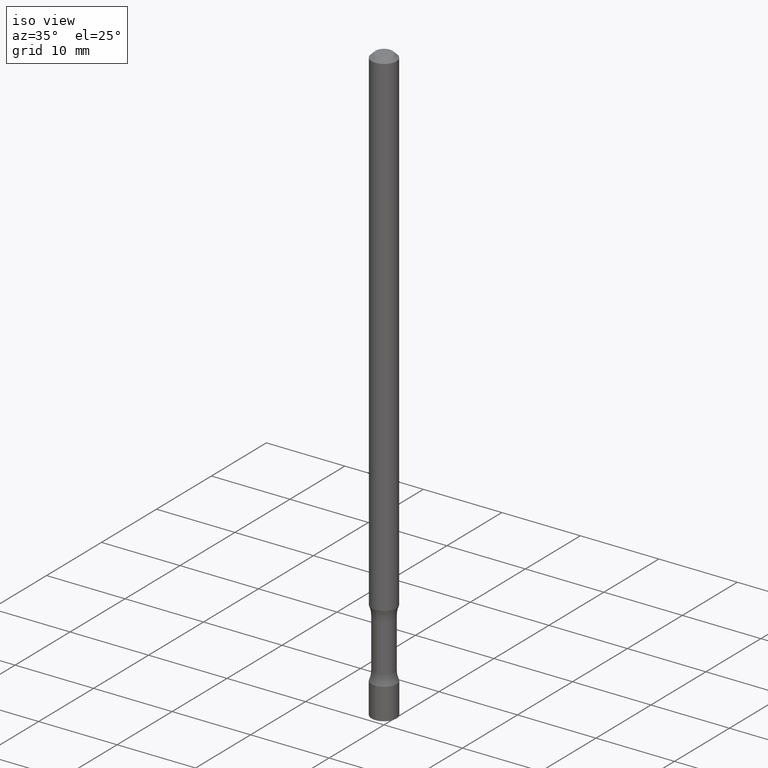
[diagram: clean part render]
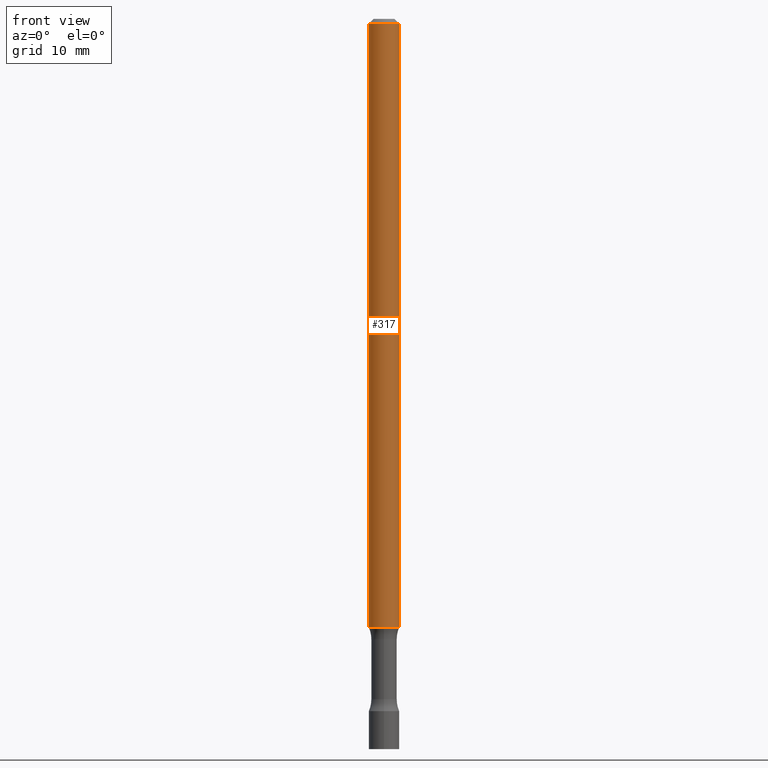
[diagram: tour spotlight — one face highlighted and labeled with its STEP entity id]
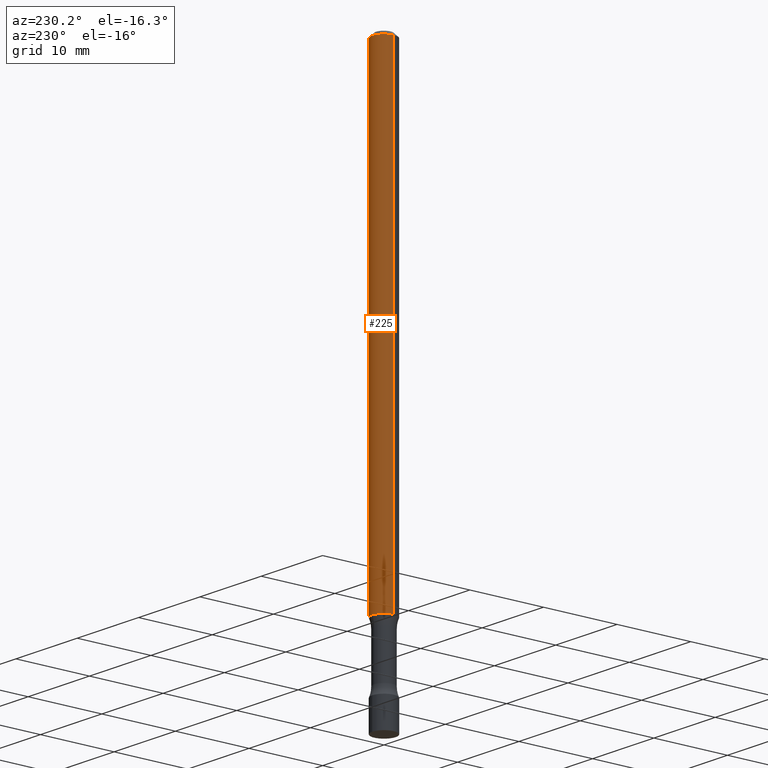
[diagram: tour spotlight — one face highlighted and labeled with its STEP entity id]
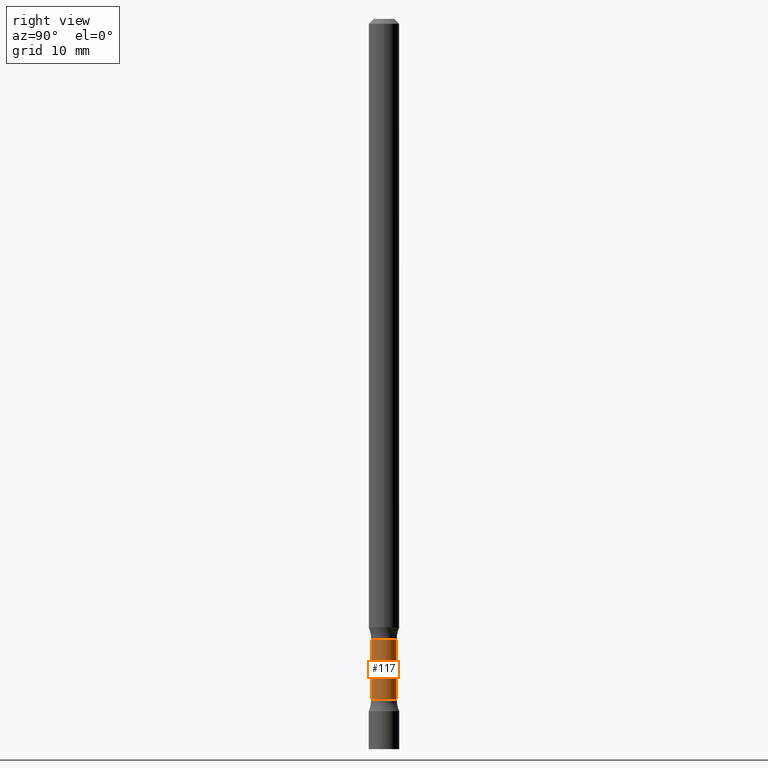
[diagram: tour spotlight — one face highlighted and labeled with its STEP entity id]
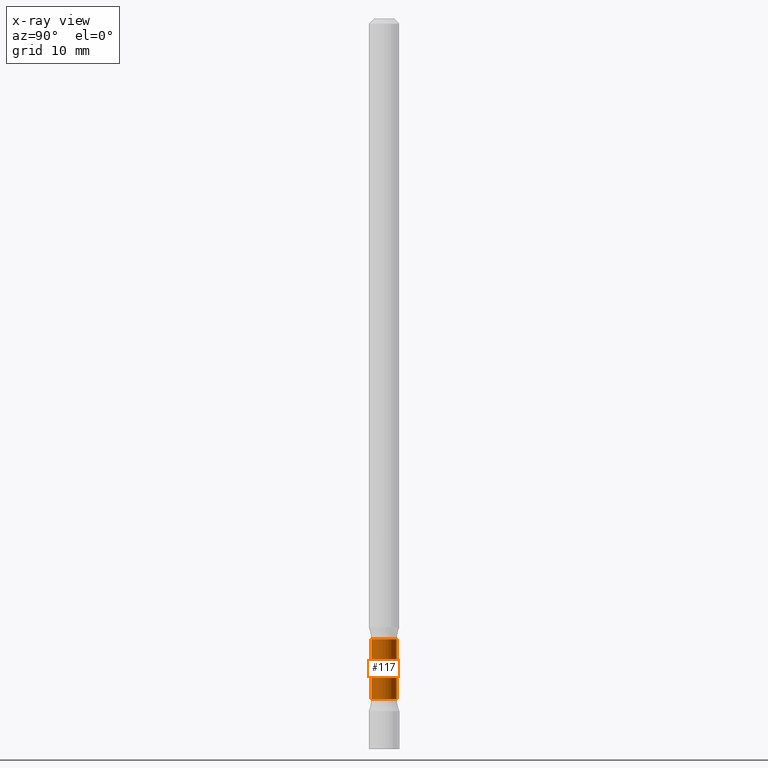
[diagram: x-ray of the same camera — body ghosted, this tour face saturated]
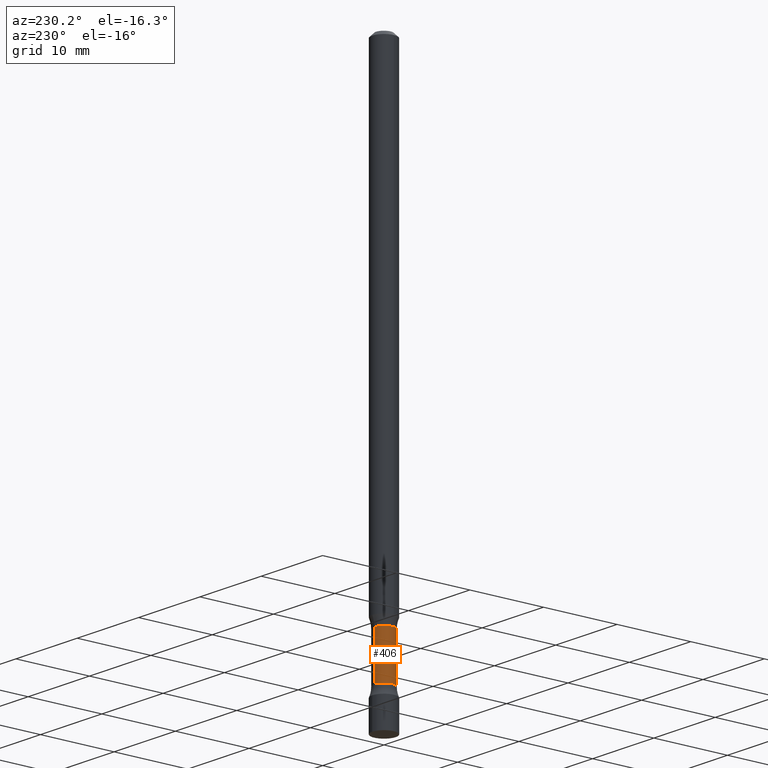
[diagram: tour spotlight — one face highlighted and labeled with its STEP entity id]
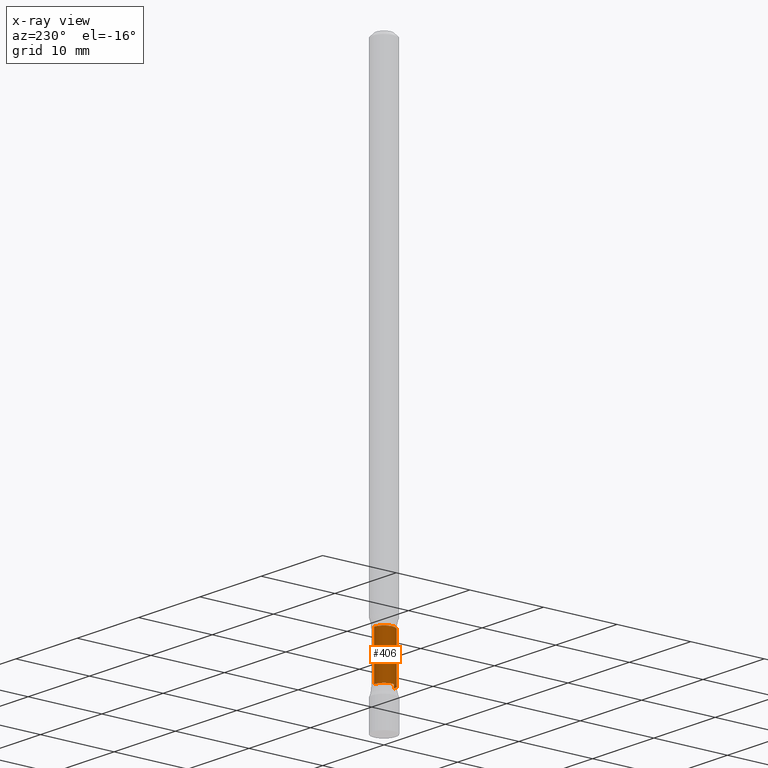
[diagram: x-ray of the same camera — body ghosted, this tour face saturated]
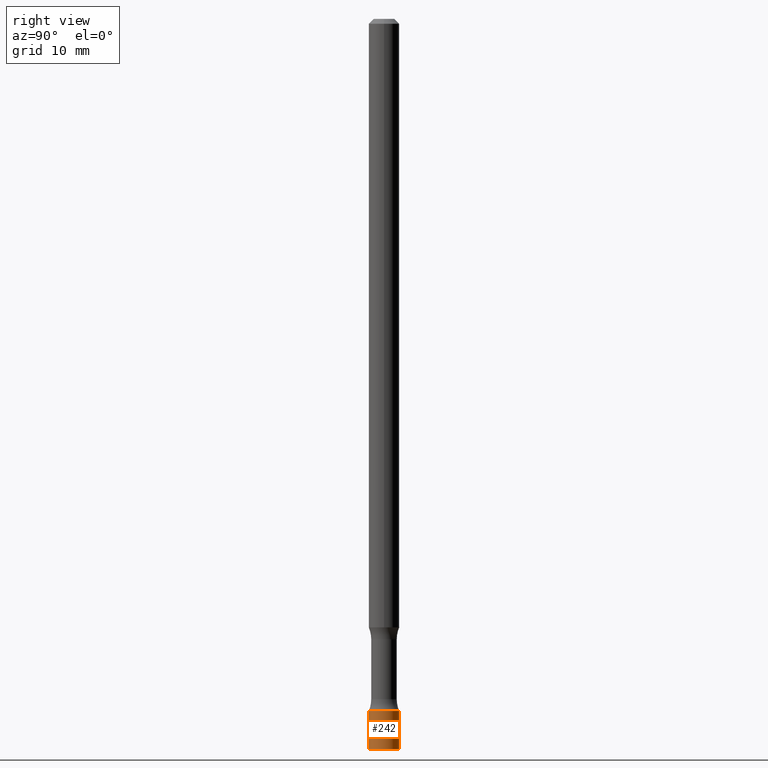
[diagram: tour spotlight — one face highlighted and labeled with its STEP entity id]
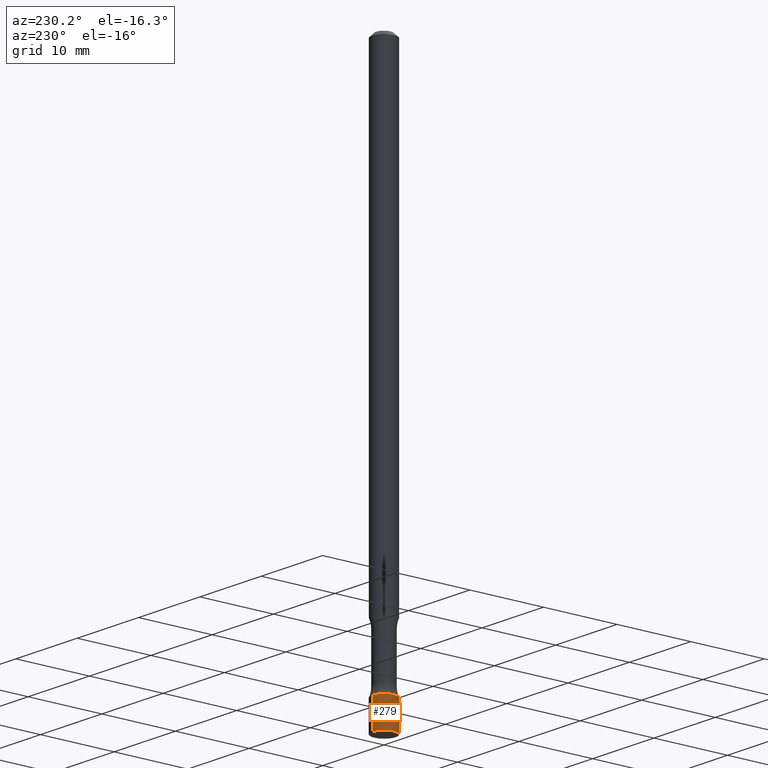
[diagram: tour spotlight — one face highlighted and labeled with its STEP entity id]
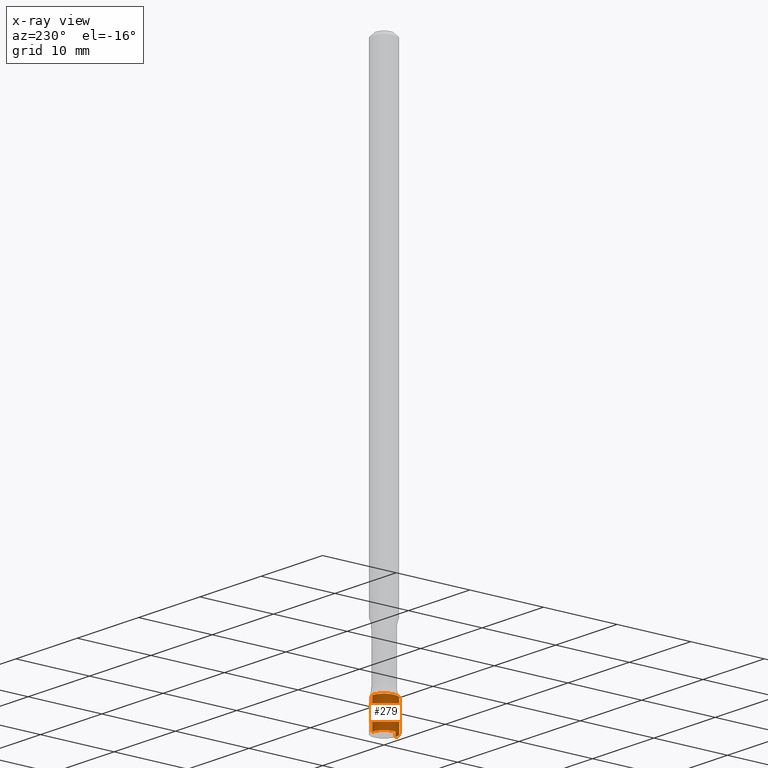
[diagram: x-ray of the same camera — body ghosted, this tour face saturated]
A machine part: a face-by-face anatomy tour. The part has 18 B-rep faces; the first image is the clean iso view, then the 6 largest visible faces are spotlighted one at a time (largest first), each with its STEP entity span.

Face 1 — front view, entity #317. In plain terms, the highlighted cylindrical surface (edge-blend (fillet) strip) has radius 1.5875 mm, axis along (-0, 0, 1).
Definition (entity closure, byte-faithful):
#1 = AXIS2_PLACEMENT_3D ( 'NONE', #157, #485, #435 ) ;
#11 = LINE ( 'NONE', #237, #386 ) ;
#12 = CARTESIAN_POINT ( 'NONE',  ( -0.06249999999999984734, 4.440892098500615315E-16, -3.074334431409308406E-30 ) ) ;
#32 = EDGE_CURVE ( 'NONE', #105, #263, #11, .T. ) ;
#49 = DIRECTION ( 'NONE',  ( -2.445468806185136877E-29, 3.491481338843145188E-15, 1.000000000000000000 ) ) ;
#56 = CYLINDRICAL_SURFACE ( 'NONE', #239, 0.06249999999999984734 ) ;
#72 = ORIENTED_EDGE ( 'NONE', *, *, #32, .T. ) ;
#81 = CARTESIAN_POINT ( 'NONE',  ( 0.06249999999999967387, -4.986107516375813584E-16, -0.02000000000000000042 ) ) ;
#105 = VERTEX_POINT ( 'NONE', #274 ) ;
#124 = CARTESIAN_POINT ( 'NONE',  ( 0.000000000000000000, 0.000000000000000000, 0.000000000000000000 ) ) ;
#157 = CARTESIAN_POINT ( 'NONE',  ( 4.890937612370273159E-31, -6.982962677686291609E-17, -0.02000000000000000042 ) ) ;
#167 = VERTEX_POINT ( 'NONE', #413 ) ;
#178 = ORIENTED_EDGE ( 'NONE', *, *, #276, .F. ) ;
#186 = CIRCLE ( 'NONE', #438, 0.06250000000000001388 ) ;
#191 = CARTESIAN_POINT ( 'NONE',  ( 6.113672015462842613E-29, -8.728703347107864943E-15, -2.500000000000000000 ) ) ;
#193 = CIRCLE ( 'NONE', #1, 0.06249999999999967387 ) ;
#206 = EDGE_CURVE ( 'NONE', #167, #263, #193, .T. ) ;
#230 = ORIENTED_EDGE ( 'NONE', *, *, #206, .F. ) ;
#237 = CARTESIAN_POINT ( 'NONE',  ( 0.06249999999999984734, -4.364351673553905847E-16, 3.047610484872452514E-30 ) ) ;
#239 = AXIS2_PLACEMENT_3D ( 'NONE', #124, #241, #450 ) ;
#241 = DIRECTION ( 'NONE',  ( -2.445468806185136597E-29, 3.491481338843145583E-15, 1.000000000000000000 ) ) ;
#254 = EDGE_CURVE ( 'NONE', #360, #105, #186, .T. ) ;
#263 = VERTEX_POINT ( 'NONE', #81 ) ;
#267 = VECTOR ( 'NONE', #49, 39.37007874015748143 ) ;
#274 = CARTESIAN_POINT ( 'NONE',  ( 0.06250000000000001388, -9.165138514463256612E-15, -2.500000000000000000 ) ) ;
#276 = EDGE_CURVE ( 'NONE', #360, #167, #402, .T. ) ;
#317 = ADVANCED_FACE ( 'NONE', ( #325 ), #56, .T. ) ;
#325 = FACE_OUTER_BOUND ( 'NONE', #397, .T. ) ;
#355 = DIRECTION ( 'NONE',  ( 1.000000000000000000, -6.982962677686276966E-15, 0.000000000000000000 ) ) ;
#360 = VERTEX_POINT ( 'NONE', #416 ) ;
#386 = VECTOR ( 'NONE', #405, 39.37007874015748143 ) ;
#397 = EDGE_LOOP ( 'NONE', ( #178, #446, #72, #230 ) ) ;
#402 = LINE ( 'NONE', #12, #267 ) ;
#405 = DIRECTION ( 'NONE',  ( -2.445468806185136877E-29, 3.491481338843145188E-15, 1.000000000000000000 ) ) ;
#413 = CARTESIAN_POINT ( 'NONE',  ( -0.06249999999999967387, 3.666055405785264484E-16, -0.02000000000000000042 ) ) ;
#416 = CARTESIAN_POINT ( 'NONE',  ( -0.06250000000000001388, -3.955177277092289671E-15, -2.500000000000000000 ) ) ;
#435 = DIRECTION ( 'NONE',  ( 1.000000000000000000, -6.982962677686265922E-15, 0.000000000000000000 ) ) ;
#438 = AXIS2_PLACEMENT_3D ( 'NONE', #191, #481, #355 ) ;
#446 = ORIENTED_EDGE ( 'NONE', *, *, #254, .T. ) ;
#450 = DIRECTION ( 'NONE',  ( 1.000000000000000000, -6.982962677686266711E-15, 4.876176775795935793E-29 ) ) ;
#481 = DIRECTION ( 'NONE',  ( -2.445468806185136597E-29, 3.491481338843145583E-15, 1.000000000000000000 ) ) ;
#485 = DIRECTION ( 'NONE',  ( -2.445468806185136597E-29, 3.491481338843145583E-15, 1.000000000000000000 ) ) ;

Face 2 — auxiliary view, entity #225. In plain terms, the highlighted cylindrical surface (edge-blend (fillet) strip) has radius 1.5875 mm, axis along (-0, 0, 1).
Definition (entity closure, byte-faithful):
#11 = LINE ( 'NONE', #237, #386 ) ;
#12 = CARTESIAN_POINT ( 'NONE',  ( -0.06249999999999984734, 4.440892098500615315E-16, -3.074334431409308406E-30 ) ) ;
#20 = ORIENTED_EDGE ( 'NONE', *, *, #276, .T. ) ;
#32 = EDGE_CURVE ( 'NONE', #105, #263, #11, .T. ) ;
#42 = CYLINDRICAL_SURFACE ( 'NONE', #490, 0.06249999999999984734 ) ;
#49 = DIRECTION ( 'NONE',  ( -2.445468806185136877E-29, 3.491481338843145188E-15, 1.000000000000000000 ) ) ;
#53 = EDGE_LOOP ( 'NONE', ( #196, #20, #497, #362 ) ) ;
#78 = DIRECTION ( 'NONE',  ( -2.445468806185136597E-29, 3.491481338843145583E-15, 1.000000000000000000 ) ) ;
#81 = CARTESIAN_POINT ( 'NONE',  ( 0.06249999999999967387, -4.986107516375813584E-16, -0.02000000000000000042 ) ) ;
#105 = VERTEX_POINT ( 'NONE', #274 ) ;
#106 = AXIS2_PLACEMENT_3D ( 'NONE', #119, #447, #235 ) ;
#116 = DIRECTION ( 'NONE',  ( 1.000000000000000000, -6.982962677686266711E-15, 4.876176775795935793E-29 ) ) ;
#119 = CARTESIAN_POINT ( 'NONE',  ( 6.113672015462842613E-29, -8.728703347107864943E-15, -2.500000000000000000 ) ) ;
#154 = DIRECTION ( 'NONE',  ( -2.445468806185136597E-29, 3.491481338843145583E-15, 1.000000000000000000 ) ) ;
#160 = CIRCLE ( 'NONE', #318, 0.06249999999999967387 ) ;
#167 = VERTEX_POINT ( 'NONE', #413 ) ;
#196 = ORIENTED_EDGE ( 'NONE', *, *, #266, .T. ) ;
#217 = EDGE_CURVE ( 'NONE', #263, #167, #160, .T. ) ;
#225 = ADVANCED_FACE ( 'NONE', ( #315 ), #42, .T. ) ;
#235 = DIRECTION ( 'NONE',  ( 1.000000000000000000, -6.982962677686276966E-15, 0.000000000000000000 ) ) ;
#237 = CARTESIAN_POINT ( 'NONE',  ( 0.06249999999999984734, -4.364351673553905847E-16, 3.047610484872452514E-30 ) ) ;
#263 = VERTEX_POINT ( 'NONE', #81 ) ;
#265 = CARTESIAN_POINT ( 'NONE',  ( 4.890937612370273159E-31, -6.982962677686291609E-17, -0.02000000000000000042 ) ) ;
#266 = EDGE_CURVE ( 'NONE', #105, #360, #504, .T. ) ;
#267 = VECTOR ( 'NONE', #49, 39.37007874015748143 ) ;
#274 = CARTESIAN_POINT ( 'NONE',  ( 0.06250000000000001388, -9.165138514463256612E-15, -2.500000000000000000 ) ) ;
#276 = EDGE_CURVE ( 'NONE', #360, #167, #402, .T. ) ;
#313 = DIRECTION ( 'NONE',  ( 1.000000000000000000, -6.982962677686265922E-15, 0.000000000000000000 ) ) ;
#315 = FACE_OUTER_BOUND ( 'NONE', #53, .T. ) ;
#318 = AXIS2_PLACEMENT_3D ( 'NONE', #265, #78, #313 ) ;
#360 = VERTEX_POINT ( 'NONE', #416 ) ;
#362 = ORIENTED_EDGE ( 'NONE', *, *, #32, .F. ) ;
#386 = VECTOR ( 'NONE', #405, 39.37007874015748143 ) ;
#402 = LINE ( 'NONE', #12, #267 ) ;
#405 = DIRECTION ( 'NONE',  ( -2.445468806185136877E-29, 3.491481338843145188E-15, 1.000000000000000000 ) ) ;
#413 = CARTESIAN_POINT ( 'NONE',  ( -0.06249999999999967387, 3.666055405785264484E-16, -0.02000000000000000042 ) ) ;
#416 = CARTESIAN_POINT ( 'NONE',  ( -0.06250000000000001388, -3.955177277092289671E-15, -2.500000000000000000 ) ) ;
#447 = DIRECTION ( 'NONE',  ( -2.445468806185136597E-29, 3.491481338843145583E-15, 1.000000000000000000 ) ) ;
#484 = CARTESIAN_POINT ( 'NONE',  ( 0.000000000000000000, 0.000000000000000000, 0.000000000000000000 ) ) ;
#490 = AXIS2_PLACEMENT_3D ( 'NONE', #484, #154, #116 ) ;
#497 = ORIENTED_EDGE ( 'NONE', *, *, #217, .F. ) ;
#504 = CIRCLE ( 'NONE', #106, 0.06250000000000001388 ) ;

Face 3 — right view, entity #117. An x-ray twin of the same camera follows (body ghosted, this face saturated) — the face is partly hidden behind the body. In plain terms, the highlighted cylindrical surface (edge-blend (fillet) strip) has radius 1.3335 mm, axis along (0, -0, -1).
Definition (entity closure, byte-faithful):
#27 = VERTEX_POINT ( 'NONE', #400 ) ;
#29 = CARTESIAN_POINT ( 'NONE',  ( -3.601761448829314848E-16, -0.05250000000001038558, -2.999999999999999556 ) ) ;
#63 = AXIS2_PLACEMENT_3D ( 'NONE', #143, #229, #393 ) ;
#65 = VERTEX_POINT ( 'NONE', #189 ) ;
#84 = VECTOR ( 'NONE', #202, 39.37007874015748143 ) ;
#87 = LINE ( 'NONE', #363, #84 ) ;
#92 = VERTEX_POINT ( 'NONE', #351 ) ;
#97 = ORIENTED_EDGE ( 'NONE', *, *, #147, .T. ) ;
#99 = VECTOR ( 'NONE', #232, 39.37007874015748143 ) ;
#117 = ADVANCED_FACE ( 'NONE', ( #478 ), #353, .T. ) ;
#120 = AXIS2_PLACEMENT_3D ( 'NONE', #152, #319, #444 ) ;
#126 = VERTEX_POINT ( 'NONE', #383 ) ;
#143 = CARTESIAN_POINT ( 'NONE',  ( 6.919632296061163578E-29, -9.636286914249898201E-15, -2.794810205144336201 ) ) ;
#146 = EDGE_CURVE ( 'NONE', #65, #27, #209, .T. ) ;
#147 = EDGE_CURVE ( 'NONE', #27, #92, #379, .T. ) ;
#152 = CARTESIAN_POINT ( 'NONE',  ( 7.020690129436727953E-29, -1.092656771200262122E-14, -3.000000000000000444 ) ) ;
#175 = CARTESIAN_POINT ( 'NONE',  ( 6.798563516394318828E-29, -8.090511427148895302E-15, -2.548989794855664570 ) ) ;
#189 = CARTESIAN_POINT ( 'NONE',  ( 3.666055405785901982E-16, 0.05249999999999094280, -2.548989794855665014 ) ) ;
#202 = DIRECTION ( 'NONE',  ( 4.925090618987720607E-30, -6.288230848226830672E-15, -1.000000000000000000 ) ) ;
#209 = CIRCLE ( 'NONE', #458, 0.05249999999999904049 ) ;
#211 = DIRECTION ( 'NONE',  ( 6.982962677686265133E-15, 1.000000000000000000, -1.040703997586405078E-14 ) ) ;
#218 = EDGE_CURVE ( 'NONE', #126, #92, #345, .T. ) ;
#229 = DIRECTION ( 'NONE',  ( 4.925090618987720607E-30, -6.288230848226830672E-15, -1.000000000000000000 ) ) ;
#232 = DIRECTION ( 'NONE',  ( 4.925090618987720607E-30, -6.288230848226830672E-15, -1.000000000000000000 ) ) ;
#238 = ORIENTED_EDGE ( 'NONE', *, *, #369, .F. ) ;
#250 = EDGE_LOOP ( 'NONE', ( #474, #97, #425, #238 ) ) ;
#319 = DIRECTION ( 'NONE',  ( 4.925090618987720607E-30, -6.288230848226830672E-15, -1.000000000000000000 ) ) ;
#345 = CIRCLE ( 'NONE', #63, 0.05249999999999986622 ) ;
#351 = CARTESIAN_POINT ( 'NONE',  ( -3.944786348717944754E-16, -0.05250000000000949740, -2.794810205144335757 ) ) ;
#353 = CYLINDRICAL_SURFACE ( 'NONE', #120, 0.05249999999999945682 ) ;
#363 = CARTESIAN_POINT ( 'NONE',  ( 3.666055405785953751E-16, 0.05249999999998852807, -3.000000000000000888 ) ) ;
#369 = EDGE_CURVE ( 'NONE', #65, #126, #87, .T. ) ;
#374 = DIRECTION ( 'NONE',  ( 4.925090618987720607E-30, -6.288230848226830672E-15, -1.000000000000000000 ) ) ;
#379 = LINE ( 'NONE', #29, #99 ) ;
#383 = CARTESIAN_POINT ( 'NONE',  ( 3.666055405785972486E-16, 0.05249999999999022809, -2.794810205144336646 ) ) ;
#393 = DIRECTION ( 'NONE',  ( 6.982962677686265922E-15, 1.000000000000000000, -1.040703997586388670E-14 ) ) ;
#400 = CARTESIAN_POINT ( 'NONE',  ( -3.944786348717886082E-16, -0.05250000000000713124, -2.548989794855663682 ) ) ;
#425 = ORIENTED_EDGE ( 'NONE', *, *, #218, .F. ) ;
#444 = DIRECTION ( 'NONE',  ( 6.982962677686266711E-15, 1.000000000000000000, -1.040703997586396716E-14 ) ) ;
#458 = AXIS2_PLACEMENT_3D ( 'NONE', #175, #374, #211 ) ;
#474 = ORIENTED_EDGE ( 'NONE', *, *, #146, .T. ) ;
#478 = FACE_OUTER_BOUND ( 'NONE', #250, .T. ) ;

Face 4 — auxiliary view, entity #406. An x-ray twin of the same camera follows (body ghosted, this face saturated) — the face is partly hidden behind the body. In plain terms, the highlighted cylindrical surface (edge-blend (fillet) strip) has radius 1.3335 mm, axis along (0, -0, -1).
Definition (entity closure, byte-faithful):
#27 = VERTEX_POINT ( 'NONE', #400 ) ;
#29 = CARTESIAN_POINT ( 'NONE',  ( -3.601761448829314848E-16, -0.05250000000001038558, -2.999999999999999556 ) ) ;
#65 = VERTEX_POINT ( 'NONE', #189 ) ;
#84 = VECTOR ( 'NONE', #202, 39.37007874015748143 ) ;
#87 = LINE ( 'NONE', #363, #84 ) ;
#89 = ORIENTED_EDGE ( 'NONE', *, *, #369, .T. ) ;
#92 = VERTEX_POINT ( 'NONE', #351 ) ;
#95 = ORIENTED_EDGE ( 'NONE', *, *, #147, .F. ) ;
#99 = VECTOR ( 'NONE', #232, 39.37007874015748143 ) ;
#114 = CIRCLE ( 'NONE', #153, 0.05249999999999904049 ) ;
#123 = CARTESIAN_POINT ( 'NONE',  ( 7.020690129436727953E-29, -1.092656771200262122E-14, -3.000000000000000444 ) ) ;
#126 = VERTEX_POINT ( 'NONE', #383 ) ;
#147 = EDGE_CURVE ( 'NONE', #27, #92, #379, .T. ) ;
#153 = AXIS2_PLACEMENT_3D ( 'NONE', #479, #261, #226 ) ;
#189 = CARTESIAN_POINT ( 'NONE',  ( 3.666055405785901982E-16, 0.05249999999999094280, -2.548989794855665014 ) ) ;
#202 = DIRECTION ( 'NONE',  ( 4.925090618987720607E-30, -6.288230848226830672E-15, -1.000000000000000000 ) ) ;
#223 = EDGE_CURVE ( 'NONE', #92, #126, #483, .T. ) ;
#226 = DIRECTION ( 'NONE',  ( 6.982962677686265133E-15, 1.000000000000000000, -1.040703997586405078E-14 ) ) ;
#232 = DIRECTION ( 'NONE',  ( 4.925090618987720607E-30, -6.288230848226830672E-15, -1.000000000000000000 ) ) ;
#243 = CYLINDRICAL_SURFACE ( 'NONE', #448, 0.05249999999999945682 ) ;
#247 = FACE_OUTER_BOUND ( 'NONE', #502, .T. ) ;
#259 = AXIS2_PLACEMENT_3D ( 'NONE', #277, #271, #344 ) ;
#261 = DIRECTION ( 'NONE',  ( 4.925090618987720607E-30, -6.288230848226830672E-15, -1.000000000000000000 ) ) ;
#271 = DIRECTION ( 'NONE',  ( 4.925090618987720607E-30, -6.288230848226830672E-15, -1.000000000000000000 ) ) ;
#277 = CARTESIAN_POINT ( 'NONE',  ( 6.919632296061163578E-29, -9.636286914249898201E-15, -2.794810205144336201 ) ) ;
#286 = ORIENTED_EDGE ( 'NONE', *, *, #223, .F. ) ;
#290 = EDGE_CURVE ( 'NONE', #27, #65, #114, .T. ) ;
#344 = DIRECTION ( 'NONE',  ( 6.982962677686265922E-15, 1.000000000000000000, -1.040703997586388670E-14 ) ) ;
#351 = CARTESIAN_POINT ( 'NONE',  ( -3.944786348717944754E-16, -0.05250000000000949740, -2.794810205144335757 ) ) ;
#363 = CARTESIAN_POINT ( 'NONE',  ( 3.666055405785953751E-16, 0.05249999999998852807, -3.000000000000000888 ) ) ;
#367 = DIRECTION ( 'NONE',  ( 6.982962677686266711E-15, 1.000000000000000000, -1.040703997586396716E-14 ) ) ;
#369 = EDGE_CURVE ( 'NONE', #65, #126, #87, .T. ) ;
#379 = LINE ( 'NONE', #29, #99 ) ;
#383 = CARTESIAN_POINT ( 'NONE',  ( 3.666055405785972486E-16, 0.05249999999999022809, -2.794810205144336646 ) ) ;
#400 = CARTESIAN_POINT ( 'NONE',  ( -3.944786348717886082E-16, -0.05250000000000713124, -2.548989794855663682 ) ) ;
#406 = ADVANCED_FACE ( 'NONE', ( #247 ), #243, .T. ) ;
#448 = AXIS2_PLACEMENT_3D ( 'NONE', #123, #456, #367 ) ;
#455 = ORIENTED_EDGE ( 'NONE', *, *, #290, .T. ) ;
#456 = DIRECTION ( 'NONE',  ( 4.925090618987720607E-30, -6.288230848226830672E-15, -1.000000000000000000 ) ) ;
#479 = CARTESIAN_POINT ( 'NONE',  ( 6.798563516394318828E-29, -8.090511427148895302E-15, -2.548989794855664570 ) ) ;
#483 = CIRCLE ( 'NONE', #259, 0.05249999999999986622 ) ;
#502 = EDGE_LOOP ( 'NONE', ( #95, #455, #89, #286 ) ) ;

Face 5 — right view, entity #242. In plain terms, the highlighted cylindrical surface (edge-blend (fillet) strip) has radius 1.5875 mm, axis along (-0, 0, 1).
Definition (entity closure, byte-faithful):
#3 = LINE ( 'NONE', #73, #339 ) ;
#4 = ORIENTED_EDGE ( 'NONE', *, *, #465, .F. ) ;
#15 = CARTESIAN_POINT ( 'NONE',  ( 4.440892098501351914E-16, 0.06249999999998967493, -3.000000000000000444 ) ) ;
#25 = CIRCLE ( 'NONE', #392, 0.06250000000000016653 ) ;
#30 = ORIENTED_EDGE ( 'NONE', *, *, #282, .F. ) ;
#51 = AXIS2_PLACEMENT_3D ( 'NONE', #459, #94, #338 ) ;
#58 = VECTOR ( 'NONE', #205, 39.37007874015748143 ) ;
#73 = CARTESIAN_POINT ( 'NONE',  ( -4.364351673553928527E-16, -0.06250000000000016653, 2.185532134272280299E-16 ) ) ;
#76 = AXIS2_PLACEMENT_3D ( 'NONE', #352, #275, #80 ) ;
#80 = DIRECTION ( 'NONE',  ( -6.982962677686266711E-15, -1.000000000000000000, 3.496851414835639012E-15 ) ) ;
#86 = CARTESIAN_POINT ( 'NONE',  ( 4.440892098501371635E-16, 0.06249999999999023004, -2.843800000000000328 ) ) ;
#94 = DIRECTION ( 'NONE',  ( -2.441718902161944862E-29, 3.496851414835638617E-15, 1.000000000000000000 ) ) ;
#129 = CIRCLE ( 'NONE', #51, 0.06250000000000016653 ) ;
#134 = EDGE_CURVE ( 'NONE', #480, #433, #25, .T. ) ;
#190 = CYLINDRICAL_SURFACE ( 'NONE', #76, 0.06250000000000016653 ) ;
#199 = LINE ( 'NONE', #488, #58 ) ;
#205 = DIRECTION ( 'NONE',  ( -2.441718902161944862E-29, 3.496851414835638223E-15, 1.000000000000000000 ) ) ;
#242 = ADVANCED_FACE ( 'NONE', ( #441 ), #190, .T. ) ;
#275 = DIRECTION ( 'NONE',  ( -2.441718902161944862E-29, 3.496851414835638617E-15, 1.000000000000000000 ) ) ;
#282 = EDGE_CURVE ( 'NONE', #480, #311, #3, .T. ) ;
#293 = DIRECTION ( 'NONE',  ( -2.441718902161944862E-29, 3.496851414835638617E-15, 1.000000000000000000 ) ) ;
#297 = EDGE_LOOP ( 'NONE', ( #337, #316, #4, #30 ) ) ;
#299 = CARTESIAN_POINT ( 'NONE',  ( 7.325156706485834866E-29, -1.049055424450691625E-14, -3.000000000000000444 ) ) ;
#310 = DIRECTION ( 'NONE',  ( -2.441718902161944862E-29, 3.496851414835638223E-15, 1.000000000000000000 ) ) ;
#311 = VERTEX_POINT ( 'NONE', #493 ) ;
#316 = ORIENTED_EDGE ( 'NONE', *, *, #451, .T. ) ;
#336 = CARTESIAN_POINT ( 'NONE',  ( -4.364351673553195379E-16, -0.06250000000001065814, -3.000000000000000444 ) ) ;
#337 = ORIENTED_EDGE ( 'NONE', *, *, #134, .T. ) ;
#338 = DIRECTION ( 'NONE',  ( -6.982962677686266711E-15, -1.000000000000000000, 0.000000000000000000 ) ) ;
#339 = VECTOR ( 'NONE', #310, 39.37007874015748143 ) ;
#352 = CARTESIAN_POINT ( 'NONE',  ( 0.000000000000000000, 0.000000000000000000, 0.000000000000000000 ) ) ;
#392 = AXIS2_PLACEMENT_3D ( 'NONE', #299, #293, #471 ) ;
#417 = VERTEX_POINT ( 'NONE', #86 ) ;
#433 = VERTEX_POINT ( 'NONE', #15 ) ;
#441 = FACE_OUTER_BOUND ( 'NONE', #297, .T. ) ;
#451 = EDGE_CURVE ( 'NONE', #433, #417, #199, .T. ) ;
#459 = CARTESIAN_POINT ( 'NONE',  ( 6.943760213968139081E-29, -9.944346053509589986E-15, -2.843800000000000328 ) ) ;
#465 = EDGE_CURVE ( 'NONE', #311, #417, #129, .T. ) ;
#471 = DIRECTION ( 'NONE',  ( -6.982962677686266711E-15, -1.000000000000000000, 0.000000000000000000 ) ) ;
#480 = VERTEX_POINT ( 'NONE', #336 ) ;
#488 = CARTESIAN_POINT ( 'NONE',  ( 4.440892098500637995E-16, 0.06250000000000016653, -2.185532134272280299E-16 ) ) ;
#493 = CARTESIAN_POINT ( 'NONE',  ( -4.364351673553233836E-16, -0.06250000000001011691, -2.843800000000000328 ) ) ;

Face 6 — auxiliary view, entity #279. An x-ray twin of the same camera follows (body ghosted, this face saturated) — the face is partly hidden behind the body. In plain terms, the highlighted cylindrical surface (edge-blend (fillet) strip) has radius 1.5875 mm, axis along (-0, 0, 1).
Definition (entity closure, byte-faithful):
#3 = LINE ( 'NONE', #73, #339 ) ;
#10 = AXIS2_PLACEMENT_3D ( 'NONE', #463, #468, #283 ) ;
#15 = CARTESIAN_POINT ( 'NONE',  ( 4.440892098501351914E-16, 0.06249999999998967493, -3.000000000000000444 ) ) ;
#46 = ORIENTED_EDGE ( 'NONE', *, *, #282, .T. ) ;
#54 = CARTESIAN_POINT ( 'NONE',  ( 0.000000000000000000, 0.000000000000000000, 0.000000000000000000 ) ) ;
#58 = VECTOR ( 'NONE', #205, 39.37007874015748143 ) ;
#73 = CARTESIAN_POINT ( 'NONE',  ( -4.364351673553928527E-16, -0.06250000000000016653, 2.185532134272280299E-16 ) ) ;
#85 = CYLINDRICAL_SURFACE ( 'NONE', #170, 0.06250000000000016653 ) ;
#86 = CARTESIAN_POINT ( 'NONE',  ( 4.440892098501371635E-16, 0.06249999999999023004, -2.843800000000000328 ) ) ;
#128 = CIRCLE ( 'NONE', #10, 0.06250000000000016653 ) ;
#163 = EDGE_CURVE ( 'NONE', #417, #311, #128, .T. ) ;
#164 = CARTESIAN_POINT ( 'NONE',  ( 7.325156706485834866E-29, -1.049055424450691625E-14, -3.000000000000000444 ) ) ;
#170 = AXIS2_PLACEMENT_3D ( 'NONE', #54, #240, #408 ) ;
#171 = EDGE_CURVE ( 'NONE', #433, #480, #287, .T. ) ;
#173 = ORIENTED_EDGE ( 'NONE', *, *, #451, .F. ) ;
#195 = FACE_OUTER_BOUND ( 'NONE', #452, .T. ) ;
#199 = LINE ( 'NONE', #488, #58 ) ;
#205 = DIRECTION ( 'NONE',  ( -2.441718902161944862E-29, 3.496851414835638223E-15, 1.000000000000000000 ) ) ;
#240 = DIRECTION ( 'NONE',  ( -2.441718902161944862E-29, 3.496851414835638617E-15, 1.000000000000000000 ) ) ;
#279 = ADVANCED_FACE ( 'NONE', ( #195 ), #85, .T. ) ;
#282 = EDGE_CURVE ( 'NONE', #480, #311, #3, .T. ) ;
#283 = DIRECTION ( 'NONE',  ( -6.982962677686266711E-15, -1.000000000000000000, 0.000000000000000000 ) ) ;
#287 = CIRCLE ( 'NONE', #357, 0.06250000000000016653 ) ;
#304 = DIRECTION ( 'NONE',  ( -6.982962677686266711E-15, -1.000000000000000000, 0.000000000000000000 ) ) ;
#310 = DIRECTION ( 'NONE',  ( -2.441718902161944862E-29, 3.496851414835638223E-15, 1.000000000000000000 ) ) ;
#311 = VERTEX_POINT ( 'NONE', #493 ) ;
#336 = CARTESIAN_POINT ( 'NONE',  ( -4.364351673553195379E-16, -0.06250000000001065814, -3.000000000000000444 ) ) ;
#339 = VECTOR ( 'NONE', #310, 39.37007874015748143 ) ;
#357 = AXIS2_PLACEMENT_3D ( 'NONE', #164, #389, #304 ) ;
#389 = DIRECTION ( 'NONE',  ( -2.441718902161944862E-29, 3.496851414835638617E-15, 1.000000000000000000 ) ) ;
#404 = ORIENTED_EDGE ( 'NONE', *, *, #171, .T. ) ;
#408 = DIRECTION ( 'NONE',  ( -6.982962677686266711E-15, -1.000000000000000000, 3.496851414835639012E-15 ) ) ;
#417 = VERTEX_POINT ( 'NONE', #86 ) ;
#433 = VERTEX_POINT ( 'NONE', #15 ) ;
#451 = EDGE_CURVE ( 'NONE', #433, #417, #199, .T. ) ;
#452 = EDGE_LOOP ( 'NONE', ( #173, #404, #46, #508 ) ) ;
#463 = CARTESIAN_POINT ( 'NONE',  ( 6.943760213968139081E-29, -9.944346053509589986E-15, -2.843800000000000328 ) ) ;
#468 = DIRECTION ( 'NONE',  ( -2.441718902161944862E-29, 3.496851414835638617E-15, 1.000000000000000000 ) ) ;
#480 = VERTEX_POINT ( 'NONE', #336 ) ;
#488 = CARTESIAN_POINT ( 'NONE',  ( 4.440892098500637995E-16, 0.06250000000000016653, -2.185532134272280299E-16 ) ) ;
#493 = CARTESIAN_POINT ( 'NONE',  ( -4.364351673553233836E-16, -0.06250000000001011691, -2.843800000000000328 ) ) ;
#508 = ORIENTED_EDGE ( 'NONE', *, *, #163, .F. ) ;